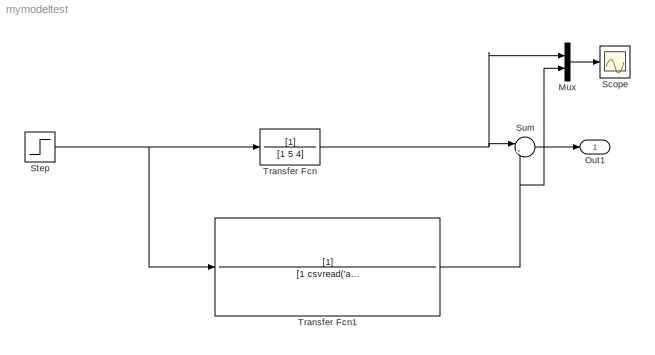
MODEL mymodeltest
KIND model
BLOCK [Mux] Mux
  DisplayOption = bar
  Inputs = 2
  Ports = [2, 1]
  SID = 7
BLOCK [Outport] Out1
  IconDisplay = Port number
  SID = 3
BLOCK [Scope] Scope
  DataFormat = StructureWithTime
  Floating = off
  NumInputPorts = 1
  Ports = [1]
  SID = 6
  SampleTime = 0
  ShowLegends = off
BLOCK [Step] Step
  SID = 5
  SampleTime = 0
BLOCK [Sum] Sum
  IconShape = round
  InputSameDT = off
  Inputs = |+-
  OutDataTypeStr = Inherit: Inherit via internal rule
  Ports = [2, 1]
  SID = 4
  SaturateOnIntegerOverflow = off
BLOCK [TransferFcn] Transfer Fcn
  Denominator = [1  5  4]
  SID = 1
BLOCK [TransferFcn] Transfer Fcn1
  Denominator = [1 csvread('a') csvread('b')]
  SID = 2
LINE Mux:1 -> Scope:1
NET Step:1 -> Transfer Fcn1:1, Transfer Fcn:1
LINE Sum:1 -> Out1:1
NET Transfer Fcn1:1 -> Mux:2, Sum:2
NET Transfer Fcn:1 -> Mux:1, Sum:1
note: NET lines group one-source signal fan-out (src -> all destinations, sorted); 1:1 wires keep LINE
